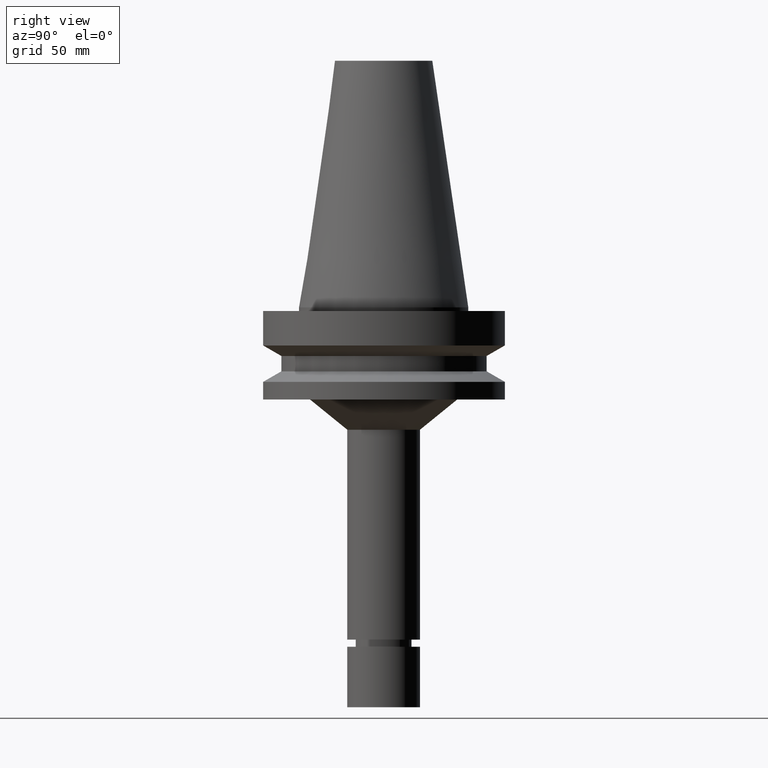
[diagram: clean part render]
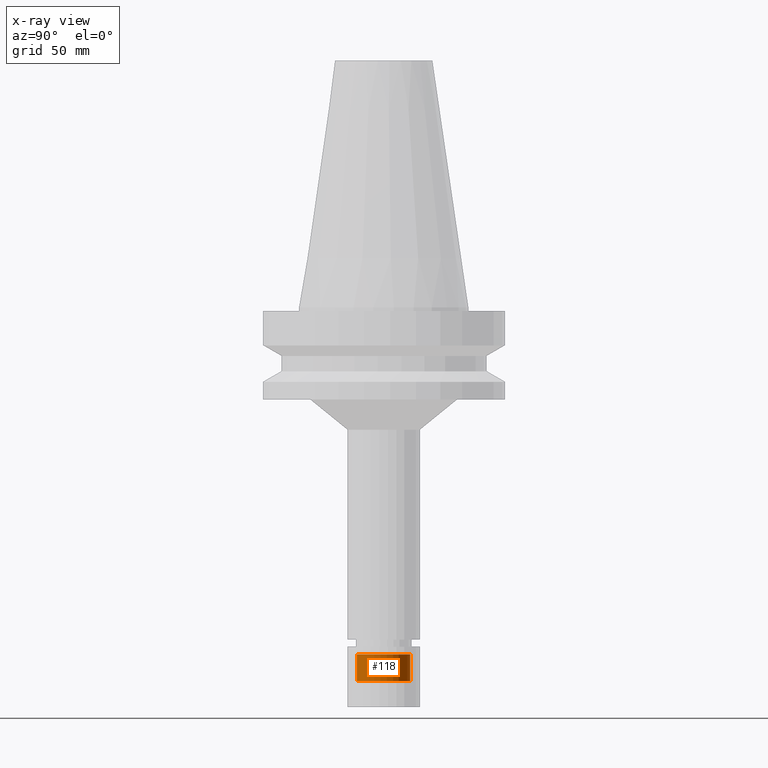
[diagram: x-ray — body ghosted, one internal face saturated and labeled with its STEP entity id]
A machine part, right view, then the same camera in x-ray: the body is ghosted and one INTERNAL B-rep face — a face not visible from any outside direction — is saturated and labeled: STEP entity #118.
In plain terms, the highlighted cylindrical surface (bore or boss wall) has radius 11 mm, axis along (-0, -0, 1).
Its self-contained STEP definition (entity closure, byte-faithful):
#109=EDGE_CURVE('Unnamed[1]',#254,#254,#255,.T.);
#118=ADVANCED_FACE('Unnamed[1]',(#268,#269),#270,.T.);
#178=EDGE_CURVE('Unnamed[1]',#359,#359,#360,.T.);
#254=VERTEX_POINT('',#443);
#255=CIRCLE('',#444,10.9999999999999);
#268=FACE_BOUND('',#460,.T.);
#269=FACE_BOUND('',#461,.T.);
#270=CYLINDRICAL_SURFACE('',#462,11.0000000000001);
#359=VERTEX_POINT('',#573);
#360=CIRCLE('',#574,11.0000000000002);
#443=CARTESIAN_POINT('',(8.76847108189496E-015,10.9999999999999,-143.199999999998));
#444=AXIS2_PLACEMENT_3D('',#641,#642,#643);
#460=EDGE_LOOP('',(#657));
#461=EDGE_LOOP('',(#658));
#462=AXIS2_PLACEMENT_3D('',#659,#660,#661);
#573=CARTESIAN_POINT('',(9.44782822508095E-015,11.0000000000003,-154.294744111672));
#574=AXIS2_PLACEMENT_3D('',#755,#756,#757);
#641=CARTESIAN_POINT('',(8.76847108189496E-015,1.97083707352186E-014,-143.199999999998));
#642=DIRECTION('',(-6.12323399573677E-017,-2.72265846766204E-017,1.0));
#643=DIRECTION('',(-6.49430021956471E-033,1.0,2.72265846766204E-017));
#657=ORIENTED_EDGE('',*,*,#109,.F.);
#658=ORIENTED_EDGE('',*,*,#178,.T.);
#659=CARTESIAN_POINT('',(9.10814965348795E-015,1.98594067302297E-014,-148.747372055835));
#660=DIRECTION('',(-6.12323399573677E-017,-2.72265846766199E-017,1.0));
#661=DIRECTION('',(-6.49430021956461E-033,1.0,2.72265846766199E-017));
#755=CARTESIAN_POINT('',(9.44782822508094E-015,2.00104427252408E-014,-154.294744111672));
#756=DIRECTION('',(-6.12323399573677E-017,-2.72265846766195E-017,1.0));
#757=DIRECTION('',(-6.4943002195645E-033,1.0,2.72265846766195E-017));